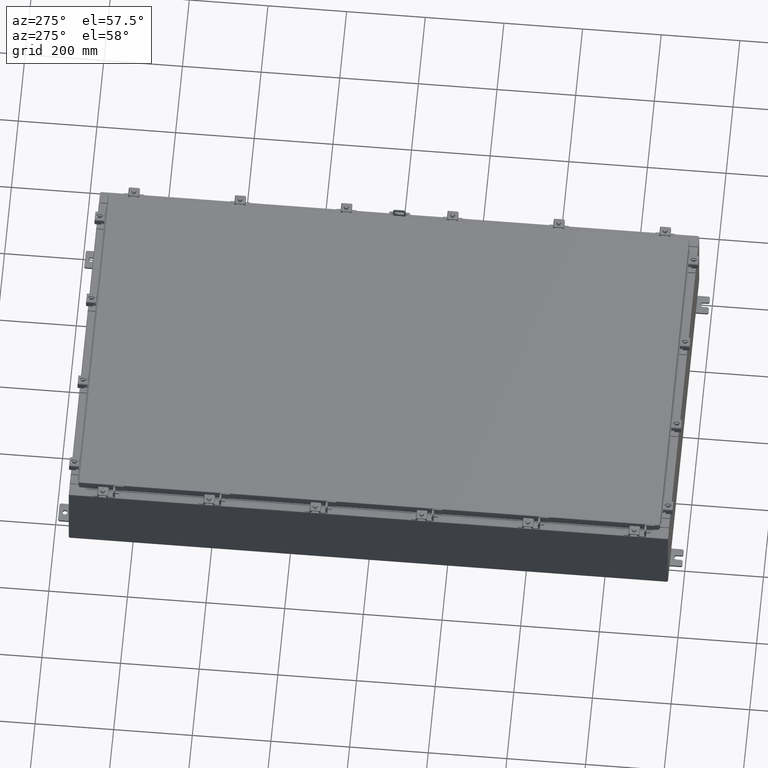
[diagram: clean part render]
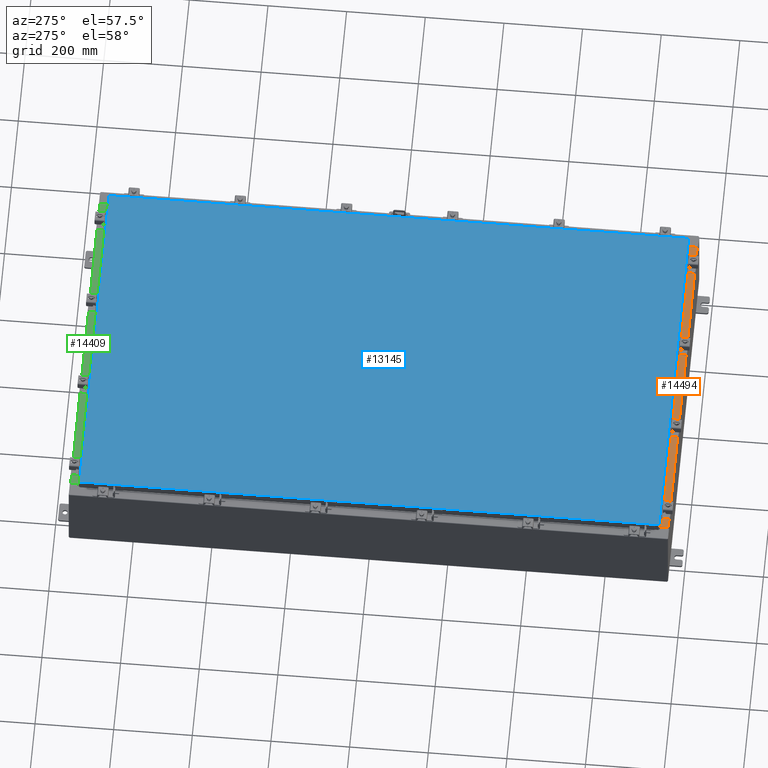
[diagram: same view with three faces highlighted in distinct colors, each labeled with its STEP entity id]
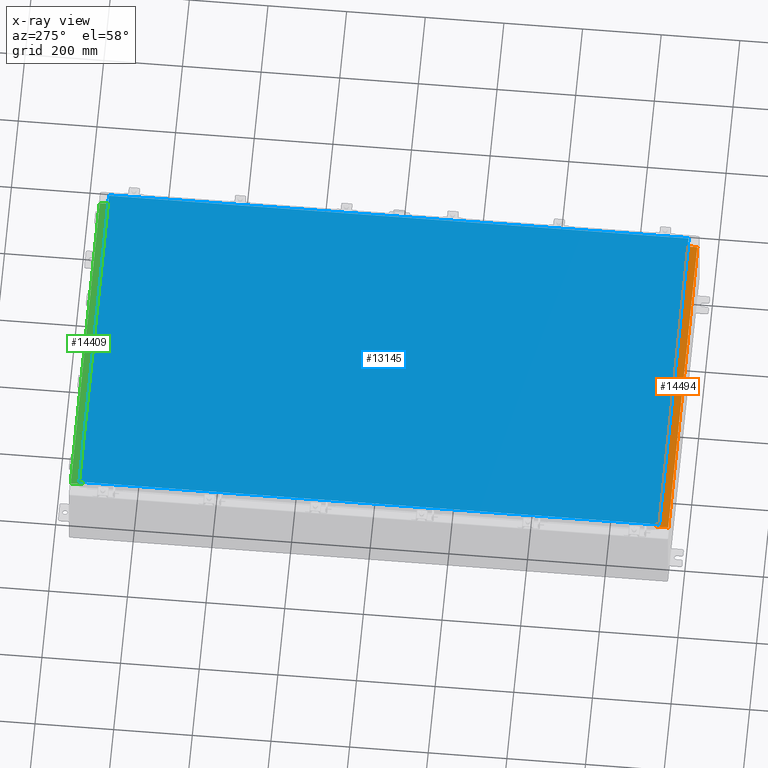
[diagram: x-ray of the same camera — body ghosted, the three highlighted faces saturated]
A machine part, auxiliary view with three faces highlighted in distinct colors.
The next image is the same camera in x-ray (body ghosted, the three faces saturated) — at least one of them is partly hidden behind the body in this view.
Their STEP definitions:

[orange] entity #14494 — the highlighted planar face has unit normal (-0, -0, 1).
#486 = LINE ( 'NONE', #9552, #21846 ) ;
#1693 = ORIENTED_EDGE ( 'NONE', *, *, #2531, .T. ) ;
#2487 = EDGE_CURVE ( 'NONE', #20381, #25023, #486, .T. ) ;
#2531 = EDGE_CURVE ( 'NONE', #20381, #27431, #26864, .T. ) ;
#2936 = CARTESIAN_POINT ( 'NONE',  ( 16.63720000000000700, -1.287299999999999900, 4.000000000000004400 ) ) ;
#4742 = CARTESIAN_POINT ( 'NONE',  ( -16.63719999999999600, -1.287299999999999200, 4.000000000000004400 ) ) ;
#4799 = VECTOR ( 'NONE', #5049, 39.37007874015748100 ) ;
#5049 = DIRECTION ( 'NONE',  ( -1.000000000000000000, 3.284023746380717400E-017, -1.171208052571274300E-031 ) ) ;
#5145 = CARTESIAN_POINT ( 'NONE',  ( -2.880088825576348200E-018, -0.08769999999999972300, 4.000000000000000900 ) ) ;
#6277 = VECTOR ( 'NONE', #11035, 39.37007874015748100 ) ;
#7762 = DIRECTION ( 'NONE',  ( -0.0000000000000000000, -1.000000000000000000, 3.566381192773190000E-015 ) ) ;
#7829 = EDGE_LOOP ( 'NONE', ( #25511, #13716, #23363, #1693 ) ) ;
#8890 = CARTESIAN_POINT ( 'NONE',  ( 0.0000000000000000000, 1.425992975200418500E-014, 4.000000000000000900 ) ) ;
#8981 = PLANE ( 'NONE',  #24582 ) ;
#9552 = CARTESIAN_POINT ( 'NONE',  ( 16.63720000000000400, -1.300299999999999800, 4.000000000000004400 ) ) ;
#11035 = DIRECTION ( 'NONE',  ( -0.0000000000000000000, 1.000000000000000000, -3.566381192773190000E-015 ) ) ;
#11129 = DIRECTION ( 'NONE',  ( 0.0000000000000000000, -1.000000000000000000, 3.566381192773190000E-015 ) ) ;
#11955 = LINE ( 'NONE', #15342, #6277 ) ;
#13716 = ORIENTED_EDGE ( 'NONE', *, *, #17606, .F. ) ;
#14494 = ADVANCED_FACE ( 'NONE', ( #27607 ), #8981, .T. ) ;
#15342 = CARTESIAN_POINT ( 'NONE',  ( -16.63719999999999600, -0.07469999999999973900, 4.000000000000000900 ) ) ;
#16228 = VERTEX_POINT ( 'NONE', #4742 ) ;
#16392 = CARTESIAN_POINT ( 'NONE',  ( 16.63720000000000700, -0.08769999999999937600, 4.000000000000000900 ) ) ;
#17606 = EDGE_CURVE ( 'NONE', #25023, #16228, #20673, .T. ) ;
#17889 = DIRECTION ( 'NONE',  ( -1.000000000000000000, 0.0000000000000000000, 0.0000000000000000000 ) ) ;
#20381 = VERTEX_POINT ( 'NONE', #16392 ) ;
#20673 = LINE ( 'NONE', #2936, #25661 ) ;
#21846 = VECTOR ( 'NONE', #7762, 39.37007874015748100 ) ;
#23363 = ORIENTED_EDGE ( 'NONE', *, *, #2487, .F. ) ;
#23441 = EDGE_CURVE ( 'NONE', #16228, #27431, #11955, .T. ) ;
#23899 = DIRECTION ( 'NONE',  ( 0.0000000000000000000, 3.566381192773190000E-015, 1.000000000000000000 ) ) ;
#24582 = AXIS2_PLACEMENT_3D ( 'NONE', #8890, #23899, #11129 ) ;
#25023 = VERTEX_POINT ( 'NONE', #27407 ) ;
#25511 = ORIENTED_EDGE ( 'NONE', *, *, #23441, .F. ) ;
#25661 = VECTOR ( 'NONE', #17889, 39.37007874015748100 ) ;
#26743 = CARTESIAN_POINT ( 'NONE',  ( -16.63719999999999600, -0.08769999999999972300, 4.000000000000000900 ) ) ;
#26864 = LINE ( 'NONE', #5145, #4799 ) ;
#27407 = CARTESIAN_POINT ( 'NONE',  ( 16.63720000000000400, -1.287299999999999900, 4.000000000000004400 ) ) ;
#27431 = VERTEX_POINT ( 'NONE', #26743 ) ;
#27607 = FACE_OUTER_BOUND ( 'NONE', #7829, .T. ) ;

[blue] entity #13145 — the highlighted planar face has unit normal (0, 0, -1).
#1168 = EDGE_CURVE ( 'NONE', #27227, #13550, #26595, .T. ) ;
#3435 = CARTESIAN_POINT ( 'NONE',  ( 16.99030000000000100, 29.00630000000000300, 1.946441695485787500E-015 ) ) ;
#3933 = FACE_OUTER_BOUND ( 'NONE', #20800, .T. ) ;
#4019 = VERTEX_POINT ( 'NONE', #23328 ) ;
#5502 = DIRECTION ( 'NONE',  ( -1.000000000000000000, 0.0000000000000000000, -0.0000000000000000000 ) ) ;
#5638 = CARTESIAN_POINT ( 'NONE',  ( -16.99029999999999400, -29.00630000000000700, 1.946441695485787500E-015 ) ) ;
#5937 = EDGE_CURVE ( 'NONE', #4019, #10199, #9052, .T. ) ;
#7573 = CARTESIAN_POINT ( 'NONE',  ( 0.0000000000000000000, 0.0000000000000000000, 0.0000000000000000000 ) ) ;
#7777 = DIRECTION ( 'NONE',  ( 1.000000000000000000, -0.0000000000000000000, -0.0000000000000000000 ) ) ;
#8031 = VECTOR ( 'NONE', #16271, 39.37007874015748100 ) ;
#8731 = CARTESIAN_POINT ( 'NONE',  ( -16.99029999999999800, 29.00629999999999600, -2.048885995248197400E-016 ) ) ;
#9052 = LINE ( 'NONE', #21646, #25401 ) ;
#9631 = CARTESIAN_POINT ( 'NONE',  ( 16.99030000000000100, 29.00630000000000300, 1.946441695485787500E-015 ) ) ;
#9870 = VECTOR ( 'NONE', #7777, 39.37007874015748100 ) ;
#10199 = VERTEX_POINT ( 'NONE', #9631 ) ;
#10635 = AXIS2_PLACEMENT_3D ( 'NONE', #7573, #18299, #5502 ) ;
#11863 = ORIENTED_EDGE ( 'NONE', *, *, #16480, .T. ) ;
#13145 = ADVANCED_FACE ( 'NONE', ( #3933 ), #16155, .F. ) ;
#13158 = ORIENTED_EDGE ( 'NONE', *, *, #21176, .T. ) ;
#13550 = VERTEX_POINT ( 'NONE', #27312 ) ;
#15553 = LINE ( 'NONE', #5638, #9870 ) ;
#16155 = PLANE ( 'NONE',  #10635 ) ;
#16271 = DIRECTION ( 'NONE',  ( -1.000000000000000000, -0.0000000000000000000, -0.0000000000000000000 ) ) ;
#16480 = EDGE_CURVE ( 'NONE', #10199, #27227, #25711, .T. ) ;
#18299 = DIRECTION ( 'NONE',  ( 0.0000000000000000000, 0.0000000000000000000, -1.000000000000000000 ) ) ;
#19484 = DIRECTION ( 'NONE',  ( 0.0000000000000000000, 1.000000000000000000, 0.0000000000000000000 ) ) ;
#20800 = EDGE_LOOP ( 'NONE', ( #13158, #23190, #11863, #22171 ) ) ;
#20913 = VECTOR ( 'NONE', #25440, 39.37007874015748100 ) ;
#21176 = EDGE_CURVE ( 'NONE', #13550, #4019, #15553, .T. ) ;
#21646 = CARTESIAN_POINT ( 'NONE',  ( 16.99030000000000500, -29.00630000000000000, -2.048885995248197400E-016 ) ) ;
#22171 = ORIENTED_EDGE ( 'NONE', *, *, #1168, .T. ) ;
#23190 = ORIENTED_EDGE ( 'NONE', *, *, #5937, .T. ) ;
#23328 = CARTESIAN_POINT ( 'NONE',  ( 16.99030000000000500, -29.00630000000000000, -2.048885995248197400E-016 ) ) ;
#25297 = CARTESIAN_POINT ( 'NONE',  ( -16.99029999999999800, 29.00629999999998900, -2.048885995248197400E-016 ) ) ;
#25401 = VECTOR ( 'NONE', #19484, 39.37007874015748100 ) ;
#25440 = DIRECTION ( 'NONE',  ( 0.0000000000000000000, -1.000000000000000000, 0.0000000000000000000 ) ) ;
#25711 = LINE ( 'NONE', #3435, #8031 ) ;
#26595 = LINE ( 'NONE', #25297, #20913 ) ;
#27227 = VERTEX_POINT ( 'NONE', #8731 ) ;
#27312 = CARTESIAN_POINT ( 'NONE',  ( -16.99029999999999400, -29.00630000000000700, 1.946441695485787500E-015 ) ) ;

[green] entity #14409 — the highlighted planar face has unit normal (0, 0, 1).
#421 = DIRECTION ( 'NONE',  ( -1.000000000000000000, 0.0000000000000000000, 0.0000000000000000000 ) ) ;
#1280 = VECTOR ( 'NONE', #23181, 39.37007874015748100 ) ;
#2356 = DIRECTION ( 'NONE',  ( 0.0000000000000000000, 3.566381192773190000E-015, 1.000000000000000000 ) ) ;
#2498 = LINE ( 'NONE', #8818, #23103 ) ;
#2795 = CARTESIAN_POINT ( 'NONE',  ( 16.63720000000000400, -1.287299999999999900, 4.000000000000004400 ) ) ;
#3382 = EDGE_LOOP ( 'NONE', ( #13123, #15583, #4612, #24388 ) ) ;
#4109 = VERTEX_POINT ( 'NONE', #8677 ) ;
#4383 = PLANE ( 'NONE',  #20324 ) ;
#4612 = ORIENTED_EDGE ( 'NONE', *, *, #17543, .F. ) ;
#4965 = VECTOR ( 'NONE', #15574, 39.37007874015748100 ) ;
#5936 = VECTOR ( 'NONE', #27608, 39.37007874015748100 ) ;
#7257 = VERTEX_POINT ( 'NONE', #8779 ) ;
#8677 = CARTESIAN_POINT ( 'NONE',  ( 16.63720000000000700, -0.08769999999999937600, 4.000000000000000900 ) ) ;
#8779 = CARTESIAN_POINT ( 'NONE',  ( -16.63719999999999600, -0.08769999999999972300, 4.000000000000000900 ) ) ;
#8818 = CARTESIAN_POINT ( 'NONE',  ( 16.63720000000000700, -1.287299999999999900, 4.000000000000004400 ) ) ;
#11428 = CARTESIAN_POINT ( 'NONE',  ( -16.63719999999999600, -1.287299999999999200, 4.000000000000004400 ) ) ;
#12421 = VERTEX_POINT ( 'NONE', #11428 ) ;
#13123 = ORIENTED_EDGE ( 'NONE', *, *, #18501, .F. ) ;
#13243 = FACE_OUTER_BOUND ( 'NONE', #3382, .T. ) ;
#13410 = CARTESIAN_POINT ( 'NONE',  ( 16.63720000000000400, -1.300299999999999800, 4.000000000000004400 ) ) ;
#13629 = EDGE_CURVE ( 'NONE', #4109, #7257, #22962, .T. ) ;
#14409 = ADVANCED_FACE ( 'NONE', ( #13243 ), #4383, .T. ) ;
#14566 = VERTEX_POINT ( 'NONE', #2795 ) ;
#15155 = CARTESIAN_POINT ( 'NONE',  ( 0.0000000000000000000, 1.425992975200418500E-014, 4.000000000000000900 ) ) ;
#15445 = EDGE_CURVE ( 'NONE', #14566, #12421, #2498, .T. ) ;
#15574 = DIRECTION ( 'NONE',  ( -0.0000000000000000000, -1.000000000000000000, 3.566381192773190000E-015 ) ) ;
#15583 = ORIENTED_EDGE ( 'NONE', *, *, #15445, .F. ) ;
#15685 = LINE ( 'NONE', #13410, #4965 ) ;
#17311 = DIRECTION ( 'NONE',  ( 0.0000000000000000000, -1.000000000000000000, 3.566381192773190000E-015 ) ) ;
#17543 = EDGE_CURVE ( 'NONE', #4109, #14566, #15685, .T. ) ;
#18295 = LINE ( 'NONE', #21037, #1280 ) ;
#18501 = EDGE_CURVE ( 'NONE', #12421, #7257, #18295, .T. ) ;
#20324 = AXIS2_PLACEMENT_3D ( 'NONE', #15155, #2356, #17311 ) ;
#21037 = CARTESIAN_POINT ( 'NONE',  ( -16.63719999999999600, -0.07469999999999973900, 4.000000000000000900 ) ) ;
#22962 = LINE ( 'NONE', #25428, #5936 ) ;
#23103 = VECTOR ( 'NONE', #421, 39.37007874015748100 ) ;
#23181 = DIRECTION ( 'NONE',  ( -0.0000000000000000000, 1.000000000000000000, -3.566381192773190000E-015 ) ) ;
#24388 = ORIENTED_EDGE ( 'NONE', *, *, #13629, .T. ) ;
#25428 = CARTESIAN_POINT ( 'NONE',  ( -2.880088825576348200E-018, -0.08769999999999972300, 4.000000000000000900 ) ) ;
#27608 = DIRECTION ( 'NONE',  ( -1.000000000000000000, 3.284023746380717400E-017, -1.171208052571274300E-031 ) ) ;